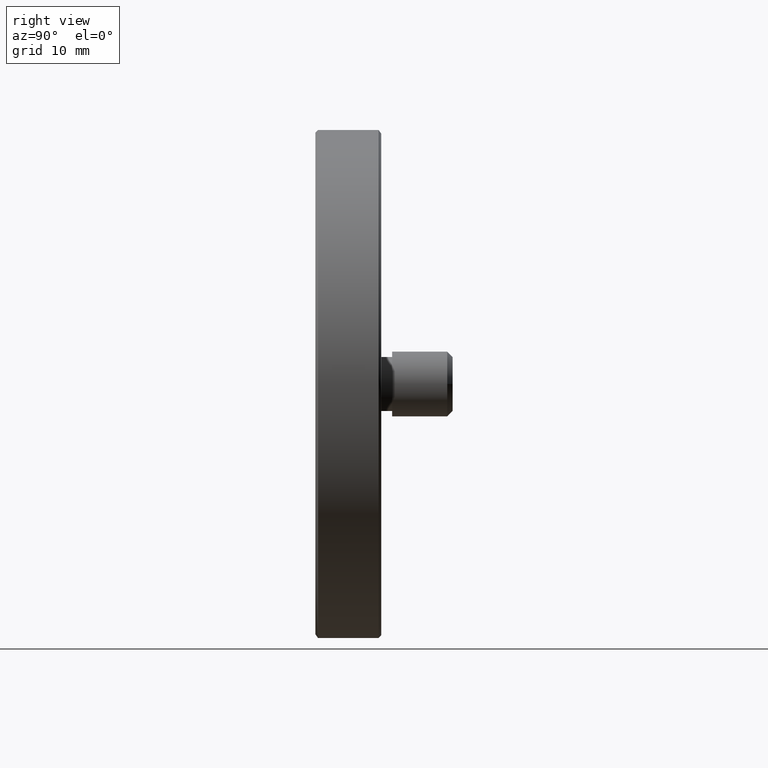
[diagram: clean part render]
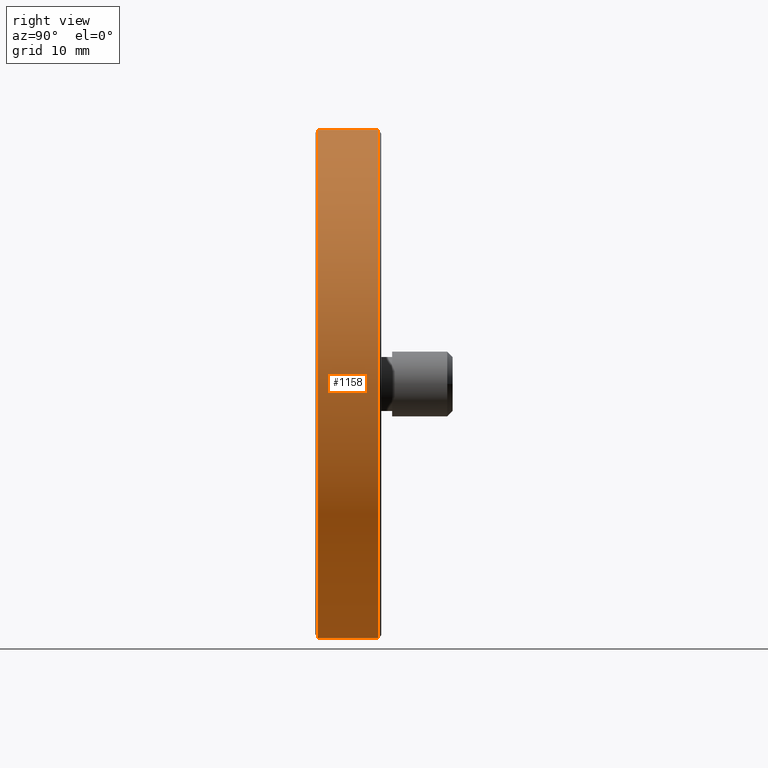
[diagram: same view with one face highlighted and labeled with its STEP entity id]
A machine part, right view. The second image highlights one B-rep face of the part: STEP entity #1158.
In plain terms, the highlighted cylindrical surface (bore or boss wall) has radius 23.5 mm, axis along (-0, -1, -0).
Its self-contained STEP definition (entity closure, byte-faithful):
#39 = FACE_OUTER_BOUND ( 'NONE', #1283, .T. ) ;
#91 = ORIENTED_EDGE ( 'NONE', *, *, #1133, .F. ) ;
#135 = EDGE_CURVE ( 'NONE', #1263, #1263, #582, .T. ) ;
#159 = DIRECTION ( 'NONE',  ( 0.000000000000000000, -7.381802025433222780E-17, -1.000000000000000000 ) ) ;
#166 = FACE_OUTER_BOUND ( 'NONE', #852, .T. ) ;
#192 = VERTEX_POINT ( 'NONE', #1017 ) ;
#215 = CARTESIAN_POINT ( 'NONE',  ( 0.000000000000000000, 0.2500000000000002220, -23.49999999999999645 ) ) ;
#273 = DIRECTION ( 'NONE',  ( 0.000000000000000000, 0.000000000000000000, -1.000000000000000000 ) ) ;
#309 = DIRECTION ( 'NONE',  ( 0.000000000000000000, 1.000000000000000000, 0.000000000000000000 ) ) ;
#323 = AXIS2_PLACEMENT_3D ( 'NONE', #456, #890, #159 ) ;
#356 = CARTESIAN_POINT ( 'NONE',  ( 0.000000000000000000, 6.099999999999999645, 0.000000000000000000 ) ) ;
#456 = CARTESIAN_POINT ( 'NONE',  ( 0.000000000000000000, 5.849999999999994316, 0.000000000000000000 ) ) ;
#470 = AXIS2_PLACEMENT_3D ( 'NONE', #356, #1204, #273 ) ;
#518 = CIRCLE ( 'NONE', #323, 23.49999999999999645 ) ;
#582 = CIRCLE ( 'NONE', #990, 23.49999999999999645 ) ;
#852 = EDGE_LOOP ( 'NONE', ( #1057 ) ) ;
#890 = DIRECTION ( 'NONE',  ( -0.000000000000000000, 1.000000000000000000, -0.000000000000000000 ) ) ;
#990 = AXIS2_PLACEMENT_3D ( 'NONE', #1072, #309, #1034 ) ;
#1017 = CARTESIAN_POINT ( 'NONE',  ( 0.000000000000000000, 5.849999999999992539, -23.49999999999999645 ) ) ;
#1034 = DIRECTION ( 'NONE',  ( 0.000000000000000000, 0.000000000000000000, -1.000000000000000000 ) ) ;
#1057 = ORIENTED_EDGE ( 'NONE', *, *, #135, .T. ) ;
#1072 = CARTESIAN_POINT ( 'NONE',  ( 0.000000000000000000, 0.2500000000000002220, 0.000000000000000000 ) ) ;
#1133 = EDGE_CURVE ( 'NONE', #192, #192, #518, .T. ) ;
#1158 = ADVANCED_FACE ( 'NONE', ( #166, #39 ), #1293, .T. ) ;
#1204 = DIRECTION ( 'NONE',  ( -0.000000000000000000, -1.000000000000000000, -0.000000000000000000 ) ) ;
#1263 = VERTEX_POINT ( 'NONE', #215 ) ;
#1283 = EDGE_LOOP ( 'NONE', ( #91 ) ) ;
#1293 = CYLINDRICAL_SURFACE ( 'NONE', #470, 23.49999999999999645 ) ;